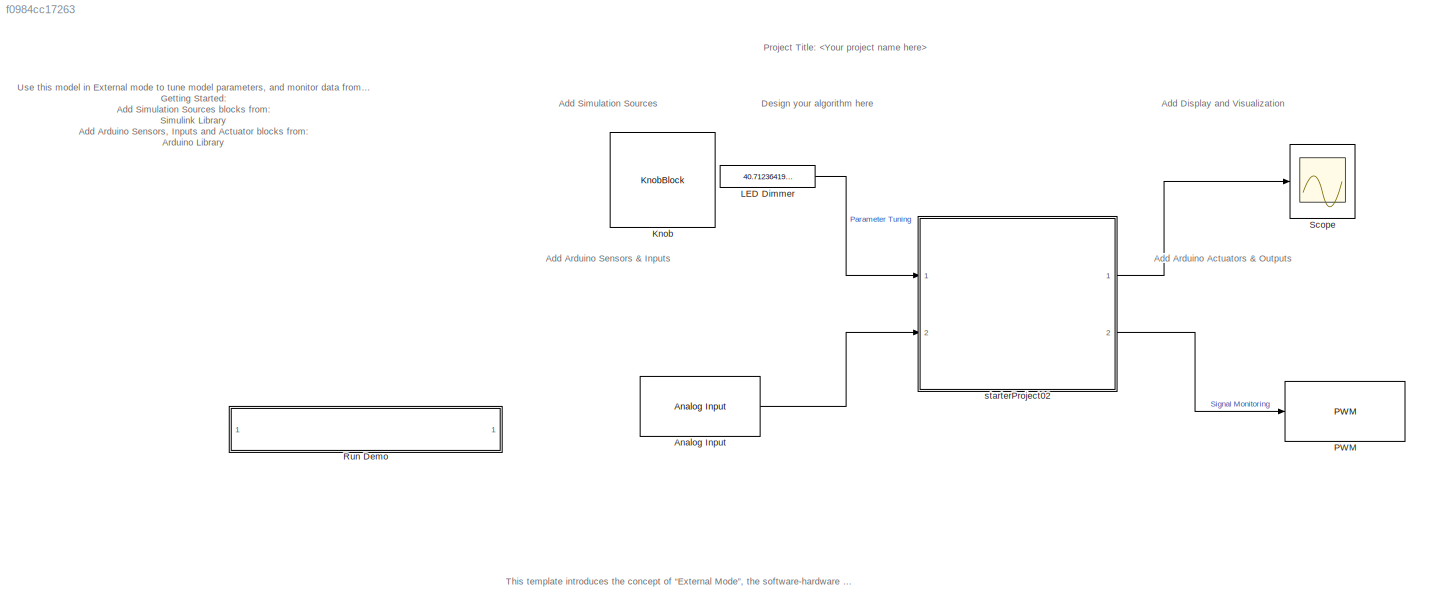
MODEL slx_f0984cc17263
KIND model
CONFIG AbsTol = auto
CONFIG EnableMultiTasking = on
CONFIG FixedStep = 0.001
CONFIG MaxStep = auto
CONFIG MinStep = auto
CONFIG RelTol = 1e-3
CONFIG SampleTimeConstraint = Unconstrained
CONFIG SolverName = ode1
CONFIG StartTime = 0.0
CONFIG StopTime = inf
BLOCK [Reference] Analog Input  REF=arduinolib/Analog Input
  Ports = [0, 1]
  SourceBlock = arduinolib/Analog Input
  SourceProductName = Simulink Support Package for Arduino Hardware
  SourceType = Arduino Analog Input
BLOCK [KnobBlock] Knob
  TickInterval = 10
BLOCK [Constant] LED Dimmer
  OutDataTypeStr = uint8
  SampleTime = 0.1
  Value = 40.71236419677734
BLOCK [Reference] PWM  REF=arduinolib/PWM
  Ports = [1]
  SourceBlock = arduinolib/PWM
  SourceProductName = Simulink Support Package for Arduino Hardware
  SourceType = Arduino PWM
BLOCK [SubSystem] Run Demo
  Description = Controls host-side RTDX processing.
  Ports = []
  RequestExecContextInheritance = off
  ShowPortLabels = none
  UserDataPersistent = on
BLOCK [Scope] Scope
  Floating = off
  NumInputPorts = 1
  Ports = [1]
  ScopeSpecificationString = Simulink.scopes.TimeScopeBlockCfg('CurrentConfiguration', extmgr.ConfigurationSet(extmgr.Configuration('Core','General UI',true),extmgr.Configuration('Core','Source UI',true),extmgr.Configuration('Sources','WiredSimulink',true,'DataLoggingLimitDataPoints',true,'DataLoggingSaveFormat','Array','DataLoggingDecimation','1','DataLoggingDecimateData',true),extmgr.Configuration('Visuals','Time Domain',tr...<+1702ch>
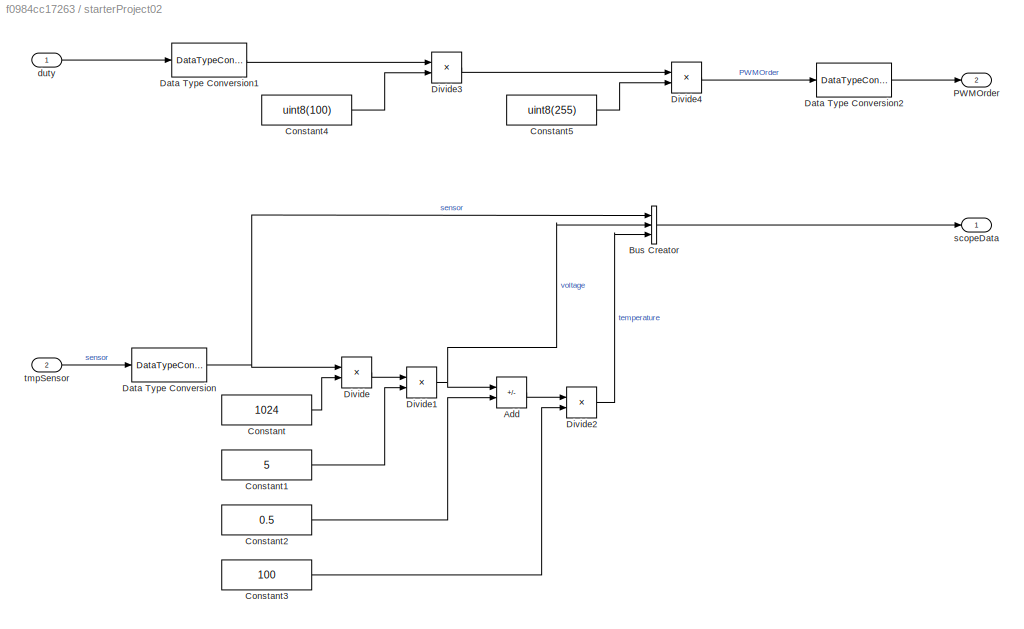
BLOCK [SubSystem] starterProject02
  Ports = [2, 2]
  RequestExecContextInheritance = off
BLOCK [Sum] starterProject02/Add
  IconShape = rectangular
  Inputs = +-
  Ports = [2, 1]
BLOCK [BusCreator] starterProject02/Bus Creator
  DisplayOption = bar
  InheritFromInputs = on
  Inputs = 3
  Ports = [3, 1]
BLOCK [Constant] starterProject02/Constant
  Value = 1024
BLOCK [Constant] starterProject02/Constant1
  Value = 5
BLOCK [Constant] starterProject02/Constant2
  Value = 0.5
BLOCK [Constant] starterProject02/Constant3
  Value = 100
BLOCK [Constant] starterProject02/Constant4
  Value = uint8(100)
BLOCK [Constant] starterProject02/Constant5
  Value = uint8(255)
BLOCK [DataTypeConversion] starterProject02/Data Type Conversion
  OutDataTypeStr = double
  RndMeth = Floor
  SaturateOnIntegerOverflow = off
BLOCK [DataTypeConversion] starterProject02/Data Type Conversion1
  OutDataTypeStr = double
  RndMeth = Floor
  SaturateOnIntegerOverflow = off
BLOCK [DataTypeConversion] starterProject02/Data Type Conversion2
  OutDataTypeStr = uint8
  RndMeth = Floor
  SaturateOnIntegerOverflow = off
BLOCK [Product] starterProject02/Divide
  Inputs = */
  Ports = [2, 1]
BLOCK [Product] starterProject02/Divide1
  Inputs = **
  Ports = [2, 1]
BLOCK [Product] starterProject02/Divide2
  Inputs = **
  Ports = [2, 1]
BLOCK [Product] starterProject02/Divide3
  Inputs = */
  Ports = [2, 1]
BLOCK [Product] starterProject02/Divide4
  Inputs = **
  Ports = [2, 1]
BLOCK [Outport] starterProject02/PWMOrder
  Port = 2
  VectorParamsAs1DForOutWhenUnconnected = off
BLOCK [Inport] starterProject02/duty
BLOCK [Outport] starterProject02/scopeData
  VectorParamsAs1DForOutWhenUnconnected = off
BLOCK [Inport] starterProject02/tmpSensor
  Port = 2
ANNOTATION (root): This template introduces the concept of “External Mode”, the software-hardware interaction based on client/server architecture for monitoring live data from target hardware in Simulink. This mode allows to determine the optimal parameter settings by adjusting parameter values on the host computer and observing data/outputs from the target hardware
ANNOTATION (root): Use this model in External mode to tune model parameters, and monitor data from the model in real-time while the model is running on the Arduino hardware. Getting Started: Add Simulation Sources blocks from: Simulink Library Add Arduino Sensors, Inputs and Actuator blocks from: Arduino Library Configure Arduino Hardware: Open Model Configuration Parameters dialog Under the Hardware Implementation ...<+439ch>
ANNOTATION (root): Add Arduino Actuators & Outputs
ANNOTATION (root): Add Arduino Sensors & Inputs
ANNOTATION (root): Add Display and Visualization
ANNOTATION (root): Add Simulation Sources
ANNOTATION (root): Design your algorithm here
ANNOTATION (root): Project Title:
LINE Analog Input:1 -> starterProject02:2
LINE LED Dimmer:1 -> starterProject02:1
LINE starterProject02/Add:1 -> starterProject02/Divide2:1
LINE starterProject02/Bus Creator:1 -> starterProject02/scopeData:1
LINE starterProject02/Constant1:1 -> starterProject02/Divide1:2
LINE starterProject02/Constant2:1 -> starterProject02/Add:2
LINE starterProject02/Constant3:1 -> starterProject02/Divide2:2
LINE starterProject02/Constant4:1 -> starterProject02/Divide3:2
LINE starterProject02/Constant5:1 -> starterProject02/Divide4:2
LINE starterProject02/Constant:1 -> starterProject02/Divide:2
LINE starterProject02/Data Type Conversion1:1 -> starterProject02/Divide3:1
LINE starterProject02/Data Type Conversion2:1 -> starterProject02/PWMOrder:1
NET starterProject02/Data Type Conversion:1 -> starterProject02/Bus Creator:1, starterProject02/Divide:1
NET starterProject02/Divide1:1 -> starterProject02/Add:1, starterProject02/Bus Creator:2
LINE starterProject02/Divide2:1 -> starterProject02/Bus Creator:3
LINE starterProject02/Divide3:1 -> starterProject02/Divide4:1
LINE starterProject02/Divide4:1 -> starterProject02/Data Type Conversion2:1
LINE starterProject02/Divide:1 -> starterProject02/Divide1:1
LINE starterProject02/duty:1 -> starterProject02/Data Type Conversion1:1
LINE starterProject02/tmpSensor:1 -> starterProject02/Data Type Conversion:1
LINE starterProject02:1 -> Scope:1
LINE starterProject02:2 -> PWM:1
note: NET lines group one-source signal fan-out (src -> all destinations, sorted); 1:1 wires keep LINE
